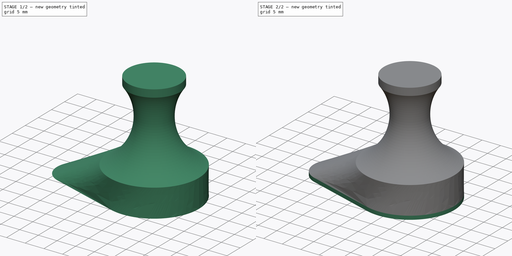
[diagram: build sequence overview — one tinted view per stage of 2, left to right]
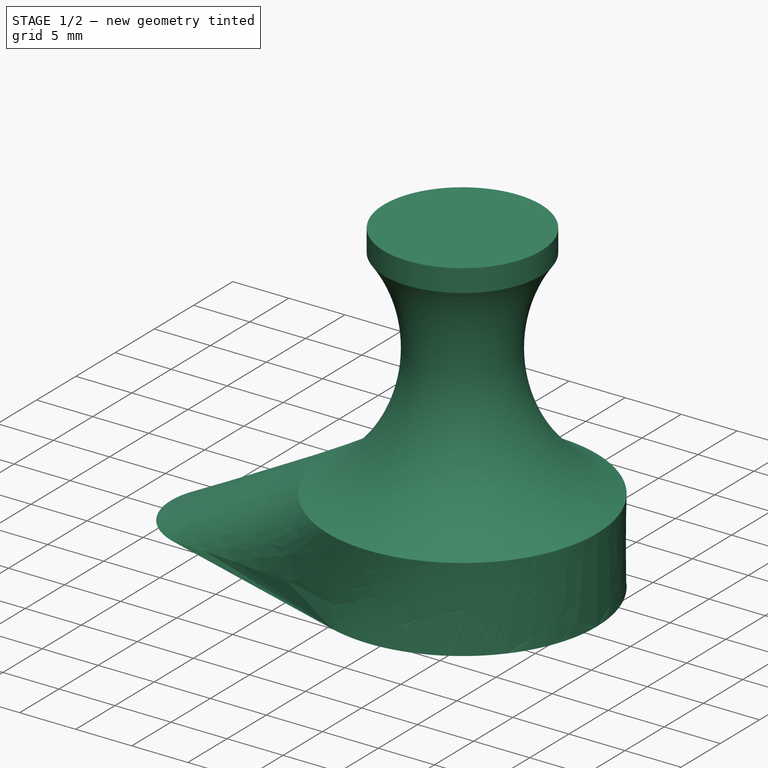
[diagram: stage 1 of 2 — iso view after this stage's code; geometry added in this stage tinted green]
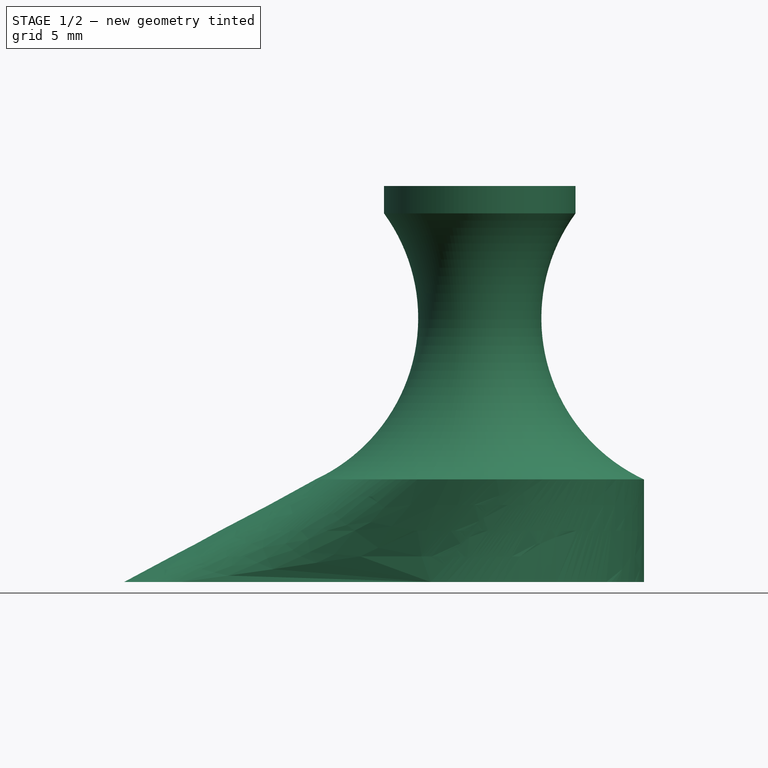
[diagram: stage 1 of 2 — front view after this stage's code; geometry added in this stage tinted green]
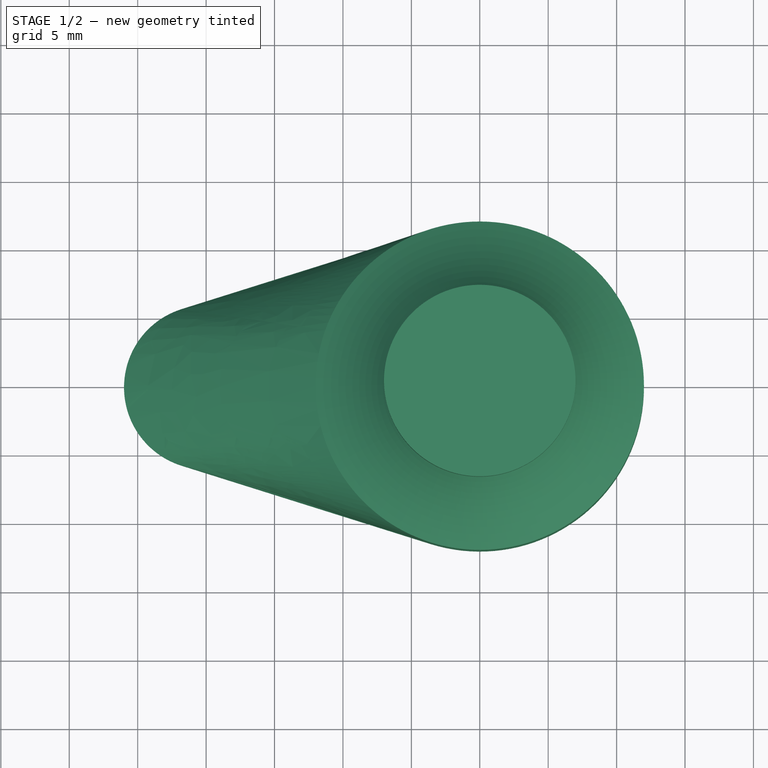
[diagram: stage 1 of 2 — top view after this stage's code; geometry added in this stage tinted green]
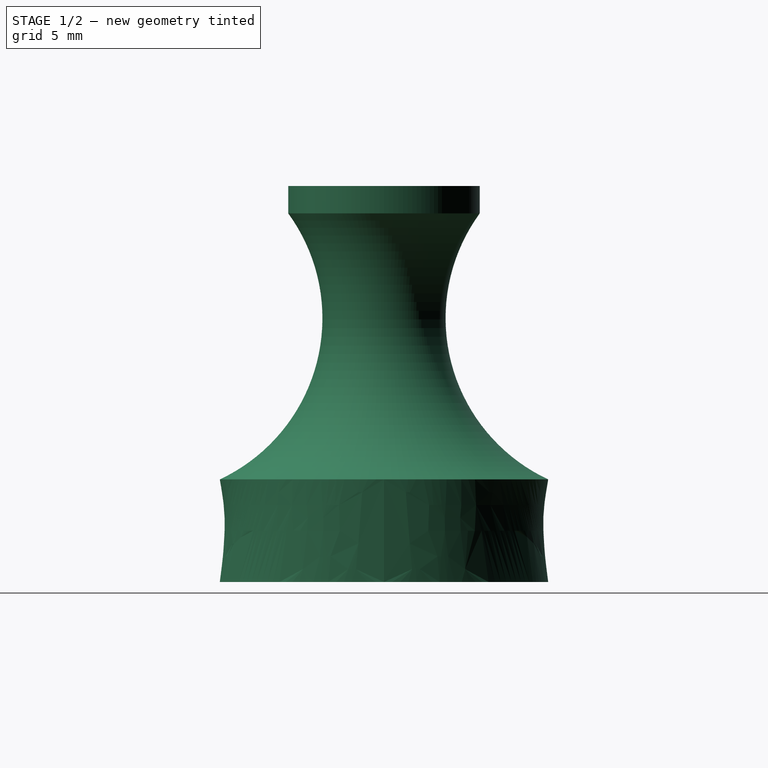
[diagram: stage 1 of 2 — right view after this stage's code; geometry added in this stage tinted green]
FCSTD DOCUMENT  (FreeCAD 0.19R23463 (Git))
Label: magnetic hook 15x5 disc
License: All rights reserved
LicenseURL: http://en.wikipedia.org/wiki/All_rights_reserved
objects: Sketcher::SketchObject×5, PartDesign::Revolution×1, PartDesign::Plane×1, PartDesign::AdditiveLoft×1, PartDesign::Pad×1, PartDesign::Pocket×1, PartDesign::Body×1
note: 15 computed .brp shape members not serialized (recipe doc carries the construction recipe); baked Part::Feature solids carry a one-line shape summary decoded from their .brp

FEATURE [Sketcher::SketchObject] Sketch
  MapMode = 5
  Placement = pos=(0,0,0) rot=(1,0,0;1.5708rad)
  Support = -> [XZ_Plane]
  sketch-geometry (6):
    g0: ArcOfCircle CenterX=17.5 CenterY=20.2792 CenterZ=0 NormalX=0 NormalY=0 NormalZ=1 AngleXU=0 Radius=13 StartAngle=2.51102 EndAngle=4.27555
    g1: LineSegment StartX=7 StartY=27.9441 StartZ=0 EndX=7 EndY=29.9441 EndZ=0
    g2: LineSegment StartX=7 StartY=29.9441 StartZ=0 EndX=0 EndY=29.9441 EndZ=0
    g3: LineSegment StartX=4.5 StartY=29.9441 StartZ=0 EndX=4.5 EndY=0 EndZ=0
    g4: LineSegment StartX=12 StartY=8.5 StartZ=0 EndX=0 EndY=8.5 EndZ=0
    g5: LineSegment StartX=0 StartY=8.5 StartZ=0 EndX=0 EndY=29.9441 EndZ=0
  constraints (20):
    c: Coincident(g1,g0)
    c: Coincident(g2,g1)
    c: Horizontal(g2)
    c: Vertical(g1)
    c: DistanceX(g2,g2) = 7
    c: DistanceY(g1,g1) = 2
    c: Vertical(g3)
    c: Tangent(g3,g0)
    c: PointOnObject(g3,g-1)
    c: PointOnObject(g3,g2)
    c: DistanceX(g3) = 4.5
    c: DistanceX(g0) = 12
    c: DistanceY(g0) = 8.5
    c: Coincident(g4,g0)
    c: Horizontal(g4)
    c: Coincident(g5,g2)
    c: Vertical(g5)
    c: Radius(g0) = 13
    c: Coincident(g4,g5)
    c: PointOnObject(g4,g-2)
FEATURE [Sketcher::SketchObject] Sketch001
  AttachmentOffset = pos=(0,0,0.5) rot=(0,0,1;0rad)
  MapMode = 5
  Placement = pos=(0,0,0.5) rot=(0,0,1;0rad)
  Support = -> [XY_Plane]
  sketch-geometry (1):
    g0: Circle CenterX=0 CenterY=0 CenterZ=0 NormalX=0 NormalY=0 NormalZ=1 AngleXU=0 Radius=7.75
  constraints (2):
    c: Coincident(g0,g-1)
    c: Diameter(g0) = 15.5
FEATURE [PartDesign::Revolution] Revolution
  Angle = 360
  Axis = (0,-2e-16,1)
  Base = (0,0,0)
  Placement = pos=(0,0,0) rot=(1,0,0;1.5708rad)
  Profile = -> Sketch
  ReferenceAxis = -> Sketch [V_Axis]
  Reversed = true
FEATURE [PartDesign::Plane] DatumPlane
  Length = 61.0995
  MapMode = 5
  Placement = pos=(0,1.9e-15,8.5) rot=(1,0,0;3.14159rad)
  ResizeMode = 0
  Support = -> [Revolution]
  Width = 60.0995
FEATURE [Sketcher::SketchObject] Sketch002
  ExternalGeometry = -> [Revolution]
  MapMode = 5
  Placement = pos=(0,1.9e-15,8.5) rot=(1,0,0;3.14159rad)
  Support = -> [DatumPlane]
  sketch-geometry (1):
    g0: Circle CenterX=0 CenterY=0 CenterZ=0 NormalX=0 NormalY=0 NormalZ=1 AngleXU=0 Radius=12
  constraints (2):
    c: Coincident(g0,g-1)
    c: Equal(g0,g-3)
FEATURE [Sketcher::SketchObject] Sketch003
  ExternalGeometry = -> [Revolution]
  MapMode = 5
  Support = -> [XY_Plane]
  sketch-geometry (4):
    g0: ArcOfCircle CenterX=0 CenterY=0 CenterZ=0 NormalX=0 NormalY=0 NormalZ=1 AngleXU=0 Radius=12 StartAngle=4.4077 EndAngle=8.15867
    g1: ArcOfCircle CenterX=-20 CenterY=0 CenterZ=0 NormalX=0 NormalY=0 NormalZ=1 AngleXU=0 Radius=6 StartAngle=1.87549 EndAngle=4.4077
    g2: LineSegment StartX=-21.8 StartY=5.72364 StartZ=0 EndX=-3.6 EndY=11.4473 EndZ=0
    g3: LineSegment StartX=-21.8 StartY=-5.72364 StartZ=0 EndX=-3.6 EndY=-11.4473 EndZ=0
  constraints (9):
    c: Coincident(g0,g-1)
    c: PointOnObject(g1,g-1)
    c: Tangent(g3,g0) = -1.5708
    c: Tangent(g3,g1) = -1.5708
    c: Tangent(g2,g1) = 1.5708
    c: Tangent(g2,g0) = 1.5708
    c: Equal(g0,g-3)
    c: Radius(g1) = 6
    c: DistanceX(g1) = -20
FEATURE [Sketcher::SketchObject] Sketch004
  AttachmentOffset = pos=(0,0,1) rot=(0,0,1;0rad)
  ExternalGeometry = -> [Revolution]
  MapMode = 5
  Placement = pos=(0,0,1) rot=(0,0,1;0rad)
  Support = -> [XY_Plane]
  expr: Constraints[8] = Sketch003.Constraints[8]
  expr: Constraints[7] = Sketch003.Constraints[7]
  sketch-geometry (4):
    g0: ArcOfCircle CenterX=0 CenterY=0 CenterZ=0 NormalX=0 NormalY=0 NormalZ=1 AngleXU=0 Radius=12 StartAngle=4.4077 EndAngle=8.15867
    g1: ArcOfCircle CenterX=-20 CenterY=0 CenterZ=0 NormalX=0 NormalY=0 NormalZ=1 AngleXU=0 Radius=6 StartAngle=1.87549 EndAngle=4.4077
    g2: LineSegment StartX=-21.8 StartY=5.72364 StartZ=0 EndX=-3.6 EndY=11.4473 EndZ=0
    g3: LineSegment StartX=-21.8 StartY=-5.72364 StartZ=0 EndX=-3.6 EndY=-11.4473 EndZ=0
  constraints (9):
    c: Coincident(g0,g-1)
    c: PointOnObject(g1,g-1)
    c: Tangent(g3,g0) = -1.5708
    c: Tangent(g3,g1) = -1.5708
    c: Tangent(g2,g1) = 1.5708
    c: Tangent(g2,g0) = 1.5708
    c: Equal(g0,g-3)
    c: Radius(g1) = 6
    c: DistanceX(g1) = -20
FEATURE [PartDesign::AdditiveLoft] AdditiveLoft
  BaseFeature = -> Revolution
  Closed = false
  Placement = pos=(0,0,0) rot=(1,0,0;1.5708rad)
  Profile = -> Sketch002
  Ruled = true
  Sections = -> [Sketch004]
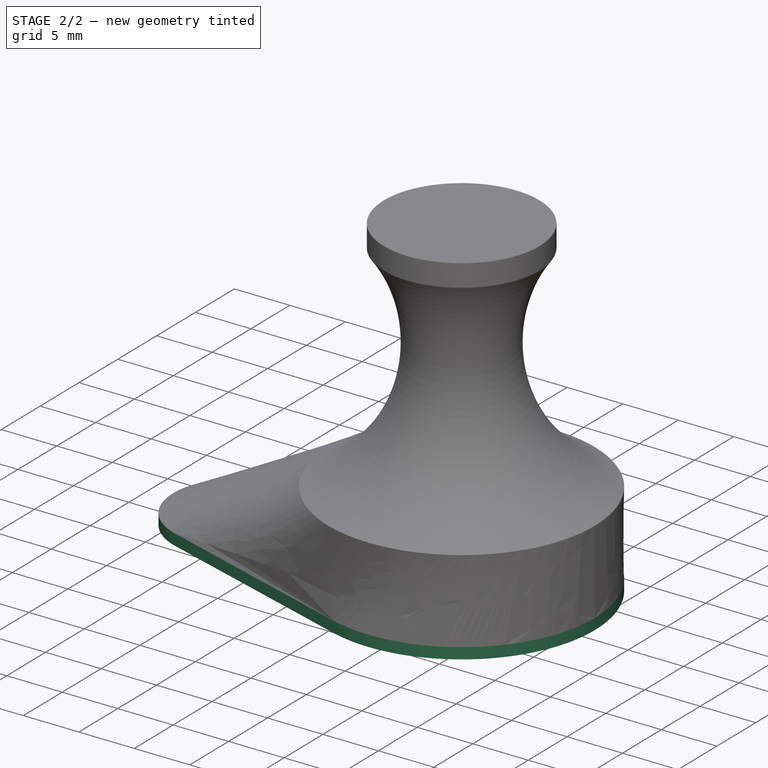
[diagram: stage 2 of 2 — iso view after this stage's code; geometry added in this stage tinted green]
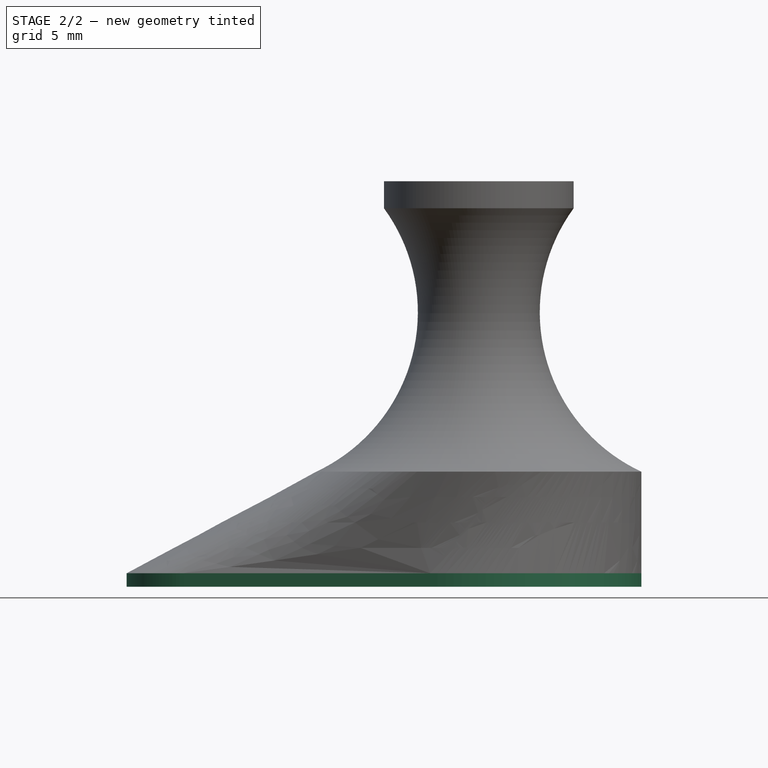
[diagram: stage 2 of 2 — front view after this stage's code; geometry added in this stage tinted green]
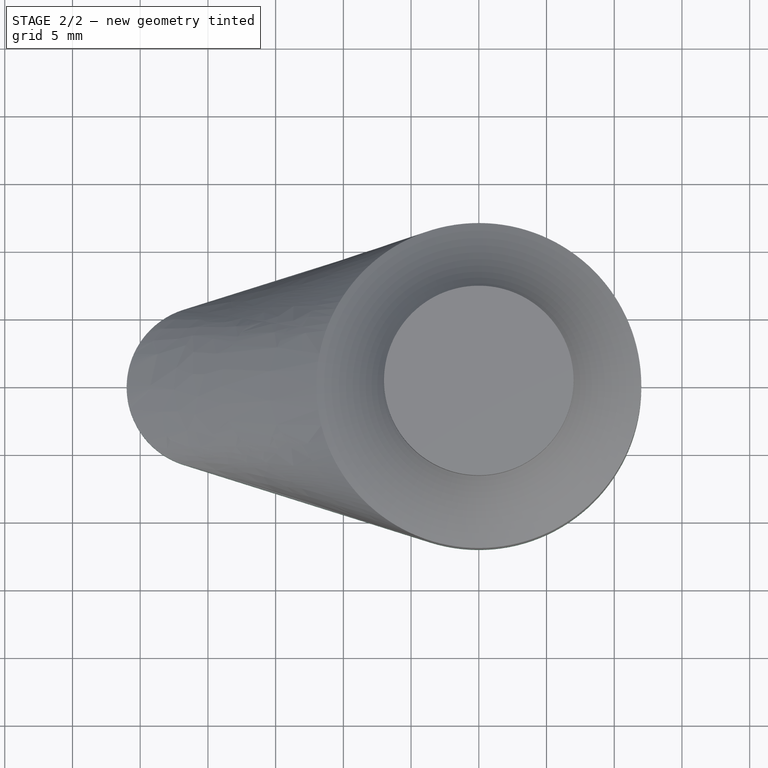
[diagram: stage 2 of 2 — top view after this stage's code; geometry added in this stage tinted green]
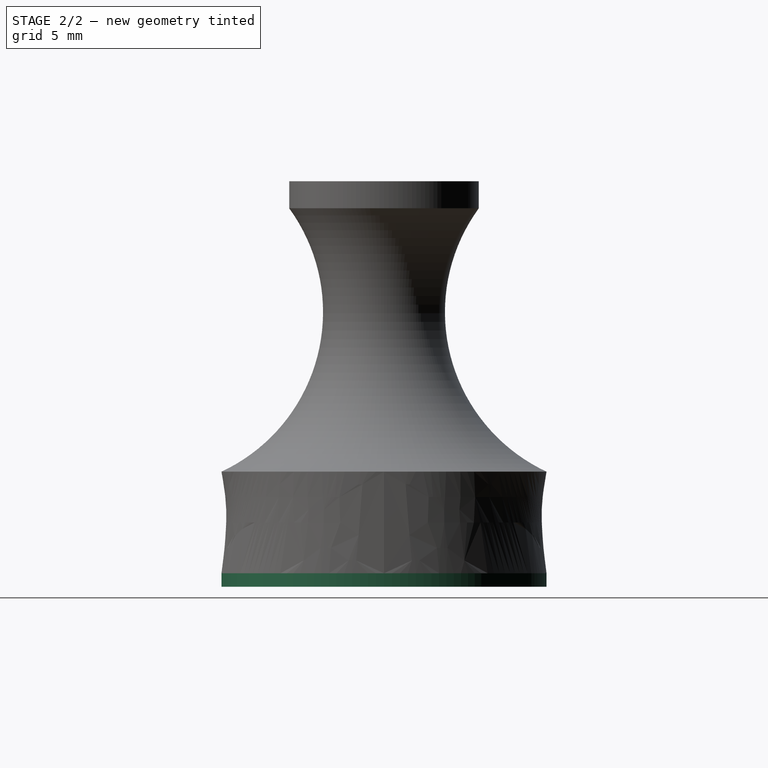
[diagram: stage 2 of 2 — right view after this stage's code; geometry added in this stage tinted green]
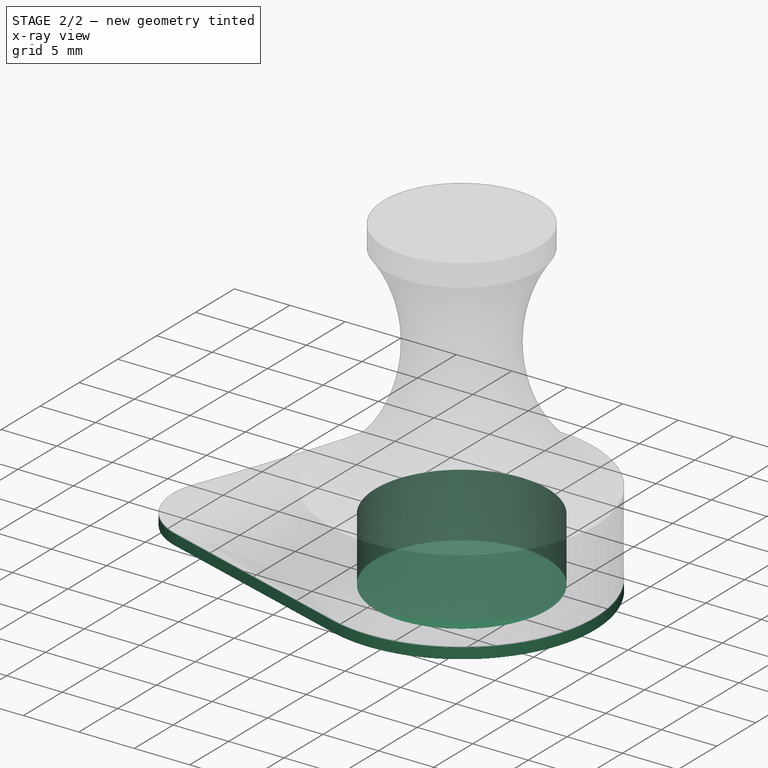
[diagram: stage 2 of 2 — x-ray composite at the iso view; earlier geometry ghosted, this stage's added geometry solid]
FEATURE [PartDesign::Pad] Pad
  BaseFeature = -> AdditiveLoft
  Direction = (1,1,1)
  Length = 1
  Length2 = 100
  Placement = pos=(0,0,0) rot=(1,0,0;1.5708rad)
  Profile = -> Sketch003
  Type = 0
FEATURE [PartDesign::Pocket] Pocket
  BaseFeature = -> Pad
  Length = 5.75
  Length2 = 100
  Placement = pos=(0,0,0) rot=(1,0,0;1.5708rad)
  Profile = -> Sketch001
  Reversed = true
  Type = 0
FEATURE [PartDesign::Body] Body
  Group = -> [Sketch,Sketch001,Revolution,DatumPlane,Sketch002,Sketch003,Sketch004,AdditiveLoft,Pad,Pocket]
  Origin = -> Origin
  Tip = -> Pocket
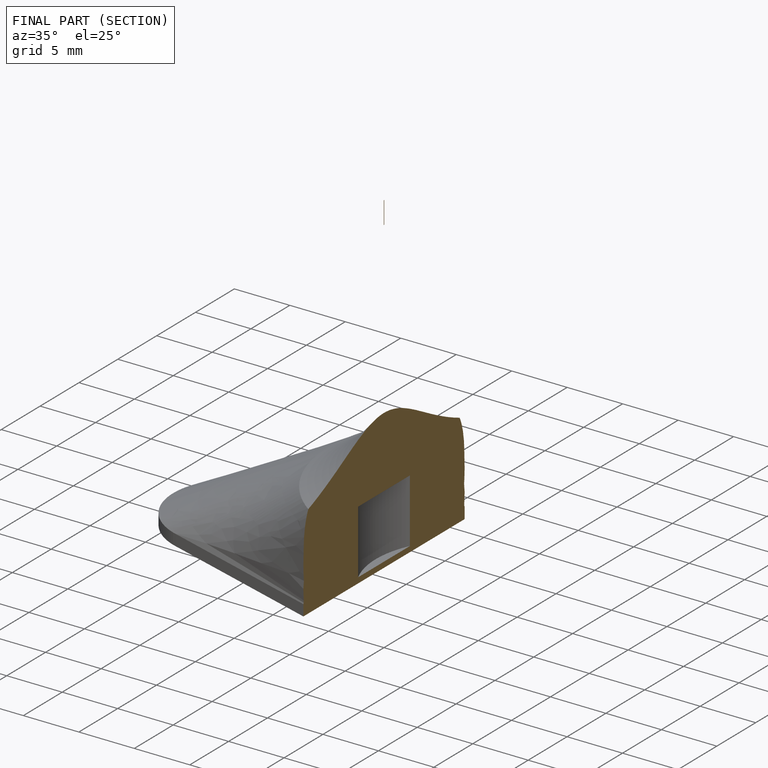
[diagram: finished part — half-section view (interior)]
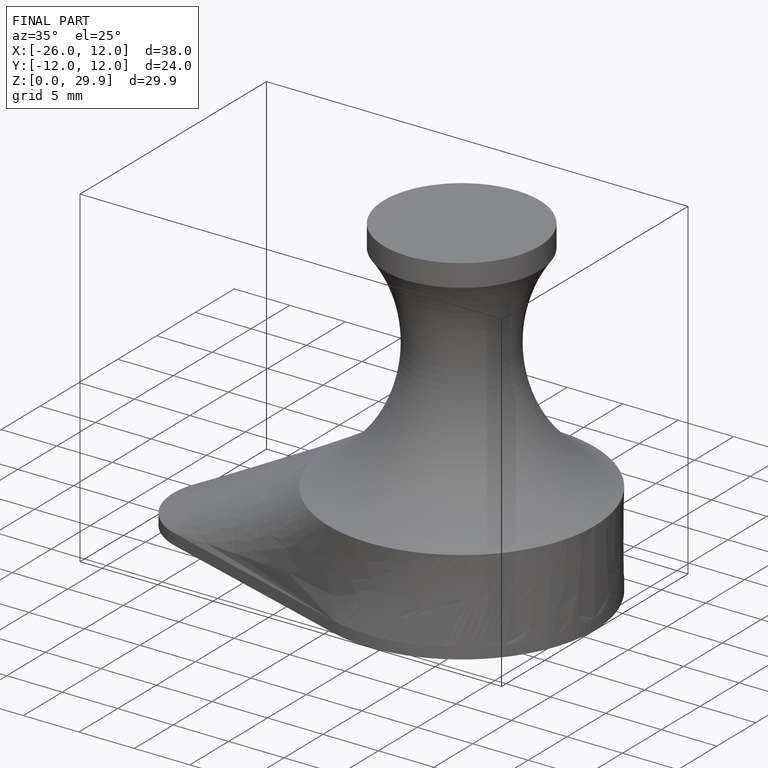
[diagram: finished part — iso view with bounding-box wireframe]
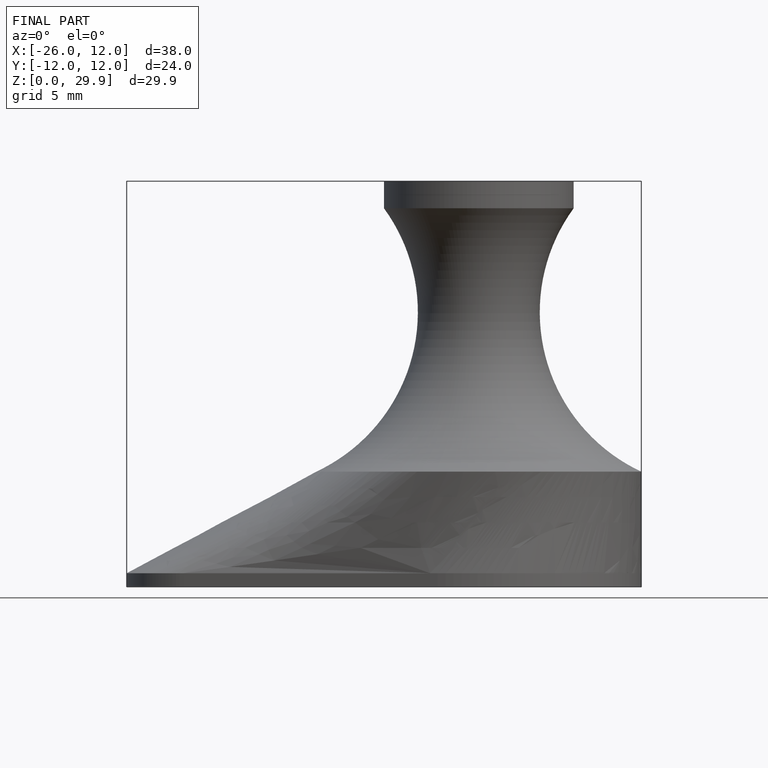
[diagram: finished part — front view with bounding-box wireframe]
